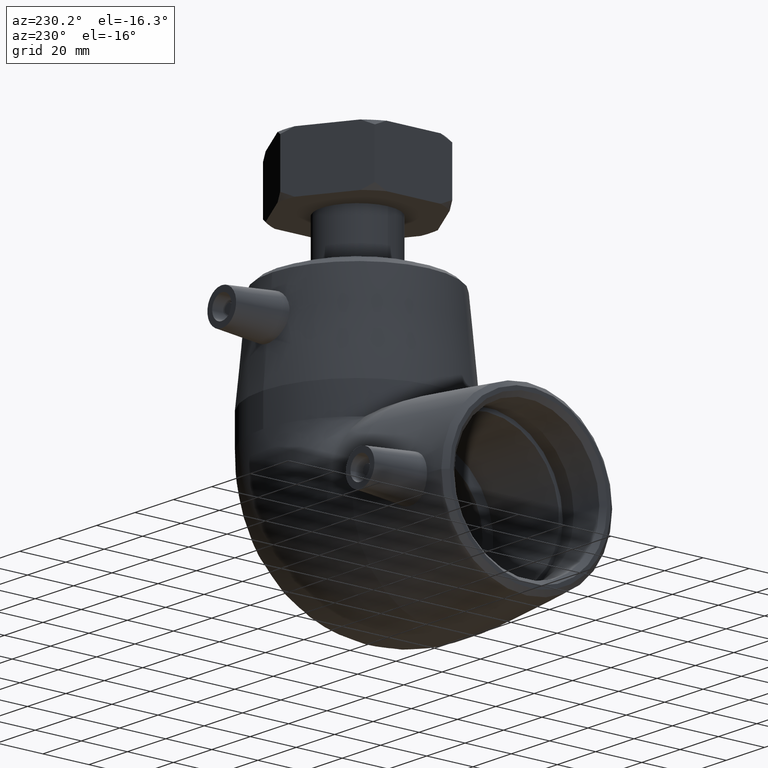
[diagram: clean part render]
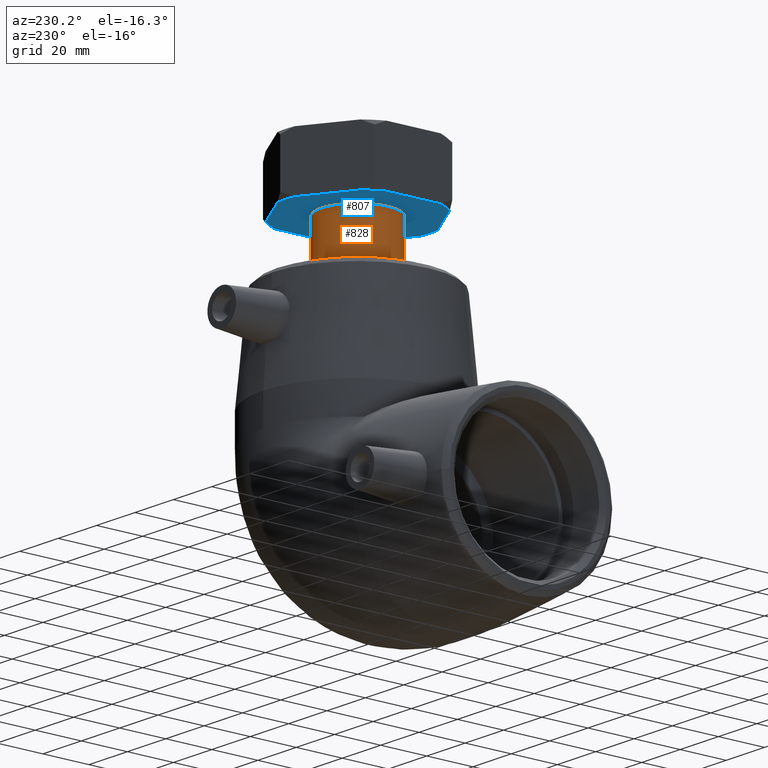
[diagram: same view with the hole feature highlighted: cylindrical wall and planar end face, labeled with their STEP entity ids]
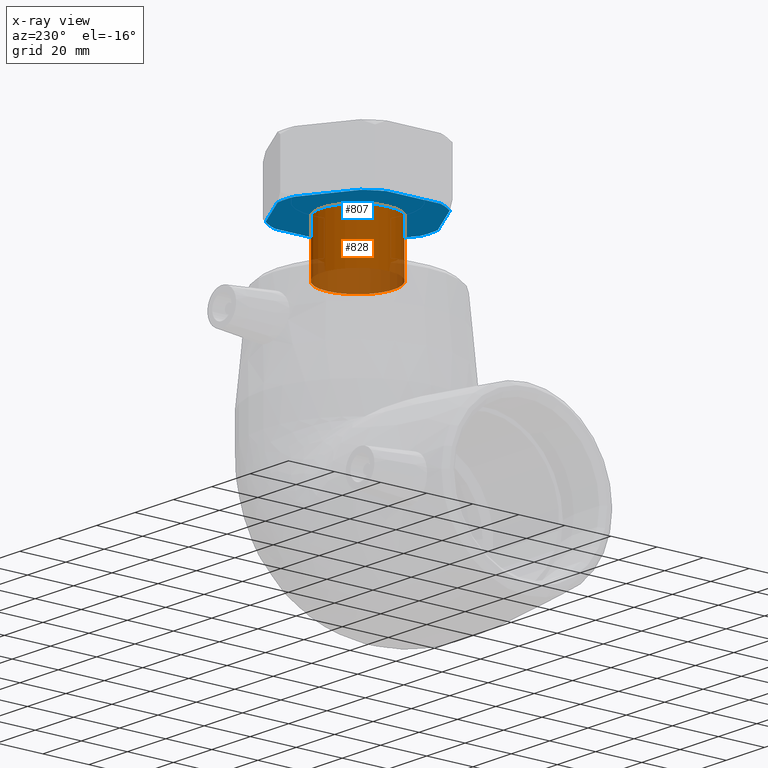
[diagram: x-ray of the same camera — body ghosted, the hole faces saturated]
A machine part, auxiliary view. The highlighted faces form one hole feature of diameter 31.3916 mm: the cylindrical wall (entity #828, orange) and its adjacent planar end face (entity #807, blue) — they share a circular edge in the B-rep.
The next image is the same camera in x-ray (body ghosted, the hole faces saturated) — the bore reads through the body.
Wall:
#87=CYLINDRICAL_SURFACE('',#933,15.69575);
#145=FACE_BOUND('',#295,.T.);
#205=FACE_OUTER_BOUND('',#294,.T.);
#294=EDGE_LOOP('',(#722));
#295=EDGE_LOOP('',(#723));
#348=CIRCLE('',#890,15.69575);
#353=CIRCLE('',#899,15.69575);
#426=VERTEX_POINT('',#1391);
#431=VERTEX_POINT('',#1405);
#524=EDGE_CURVE('',#426,#426,#348,.T.);
#529=EDGE_CURVE('',#431,#431,#353,.T.);
#722=ORIENTED_EDGE('',*,*,#529,.F.);
#723=ORIENTED_EDGE('',*,*,#524,.T.);
#828=ADVANCED_FACE('',(#205,#145),#87,.T.);
#890=AXIS2_PLACEMENT_3D('',#1392,#1064,#1065);
#899=AXIS2_PLACEMENT_3D('',#1406,#1082,#1083);
#933=AXIS2_PLACEMENT_3D('',#1527,#1150,#1151);
#1064=DIRECTION('center_axis',(-2.46716227694479E-16,0.,-1.));
#1065=DIRECTION('ref_axis',(1.,0.,-2.46716227694479E-16));
#1082=DIRECTION('center_axis',(-2.46716227694479E-16,0.,-1.));
#1083=DIRECTION('ref_axis',(1.,0.,-2.46716227694479E-16));
#1150=DIRECTION('center_axis',(-2.46716227694479E-16,0.,-1.));
#1151=DIRECTION('ref_axis',(-1.,0.,3.14483738942102E-16));
#1391=CARTESIAN_POINT('',(-15.69575,0.,114.5));
#1392=CARTESIAN_POINT('Origin',(2.82490080710179E-14,0.,114.5));
#1405=CARTESIAN_POINT('',(-15.69575,0.,91.96));
#1406=CARTESIAN_POINT('Origin',(2.26880242987843E-14,0.,91.96));
#1527=CARTESIAN_POINT('Origin',(2.54685161849011E-14,0.,103.23));
End face:
#21=LINE('',#1253,#39);
#25=LINE('',#1277,#43);
#28=LINE('',#1299,#46);
#30=LINE('',#1316,#48);
#32=LINE('',#1335,#50);
#35=LINE('',#1357,#53);
#39=VECTOR('',#988,23.4097772696047);
#43=VECTOR('',#994,23.4097772696046);
#46=VECTOR('',#999,23.4097772696047);
#48=VECTOR('',#1003,23.4097772696046);
#50=VECTOR('',#1007,23.4097772696047);
#53=VECTOR('',#1012,23.4097772696047);
#102=PLANE('',#889);
#122=FACE_BOUND('',#251,.T.);
#184=FACE_OUTER_BOUND('',#250,.T.);
#250=EDGE_LOOP('',(#656,#657,#658,#659,#660,#661,#662,#663,#664,#665,#666,
#667));
#251=EDGE_LOOP('',(#668));
#342=CIRCLE('',#878,31.3915);
#343=CIRCLE('',#880,31.3915);
#344=CIRCLE('',#882,31.3915);
#345=CIRCLE('',#884,31.3915);
#346=CIRCLE('',#886,31.3915);
#347=CIRCLE('',#888,31.3915);
#348=CIRCLE('',#890,15.69575);
#395=VERTEX_POINT('',#1248);
#396=VERTEX_POINT('',#1252);
#402=VERTEX_POINT('',#1272);
#403=VERTEX_POINT('',#1276);
#408=VERTEX_POINT('',#1294);
#409=VERTEX_POINT('',#1298);
#413=VERTEX_POINT('',#1311);
#414=VERTEX_POINT('',#1315);
#417=VERTEX_POINT('',#1330);
#418=VERTEX_POINT('',#1334);
#423=VERTEX_POINT('',#1352);
#424=VERTEX_POINT('',#1356);
#426=VERTEX_POINT('',#1391);
#475=EDGE_CURVE('',#396,#395,#21,.T.);
#483=EDGE_CURVE('',#403,#402,#25,.T.);
#490=EDGE_CURVE('',#409,#408,#28,.T.);
#495=EDGE_CURVE('',#414,#413,#30,.T.);
#501=EDGE_CURVE('',#418,#417,#32,.T.);
#508=EDGE_CURVE('',#424,#423,#35,.T.);
#518=EDGE_CURVE('',#409,#402,#342,.T.);
#519=EDGE_CURVE('',#414,#408,#343,.T.);
#520=EDGE_CURVE('',#403,#395,#344,.T.);
#521=EDGE_CURVE('',#396,#417,#345,.T.);
#522=EDGE_CURVE('',#424,#413,#346,.T.);
#523=EDGE_CURVE('',#418,#423,#347,.T.);
#524=EDGE_CURVE('',#426,#426,#348,.T.);
#656=ORIENTED_EDGE('',*,*,#508,.T.);
#657=ORIENTED_EDGE('',*,*,#523,.F.);
#658=ORIENTED_EDGE('',*,*,#501,.T.);
#659=ORIENTED_EDGE('',*,*,#521,.F.);
#660=ORIENTED_EDGE('',*,*,#475,.T.);
#661=ORIENTED_EDGE('',*,*,#520,.F.);
#662=ORIENTED_EDGE('',*,*,#483,.T.);
#663=ORIENTED_EDGE('',*,*,#518,.F.);
#664=ORIENTED_EDGE('',*,*,#490,.T.);
#665=ORIENTED_EDGE('',*,*,#519,.F.);
#666=ORIENTED_EDGE('',*,*,#495,.T.);
#667=ORIENTED_EDGE('',*,*,#522,.F.);
#668=ORIENTED_EDGE('',*,*,#524,.F.);
#807=ADVANCED_FACE('',(#184,#122),#102,.T.);
#878=AXIS2_PLACEMENT_3D('',#1379,#1040,#1041);
#880=AXIS2_PLACEMENT_3D('',#1381,#1044,#1045);
#882=AXIS2_PLACEMENT_3D('',#1383,#1048,#1049);
#884=AXIS2_PLACEMENT_3D('',#1385,#1052,#1053);
#886=AXIS2_PLACEMENT_3D('',#1387,#1056,#1057);
#888=AXIS2_PLACEMENT_3D('',#1389,#1060,#1061);
#889=AXIS2_PLACEMENT_3D('',#1390,#1062,#1063);
#890=AXIS2_PLACEMENT_3D('',#1392,#1064,#1065);
#988=DIRECTION('',(-0.866025403784438,-0.500000000000001,2.13662520709285E-16));
#994=DIRECTION('',(-0.866025403784439,0.499999999999999,2.13662520709285E-16));
#999=DIRECTION('',(-1.5844413775451E-15,1.,3.90907399670971E-31));
#1003=DIRECTION('',(0.866025403784438,0.500000000000002,-2.13662520709285E-16));
#1007=DIRECTION('',(1.05629425169673E-15,-1.,-2.60604933113981E-31));
#1012=DIRECTION('',(0.866025403784439,-0.499999999999999,-2.13662520709285E-16));
#1040=DIRECTION('center_axis',(2.46716227694479E-16,0.,1.));
#1041=DIRECTION('ref_axis',(1.,0.,-2.46716227694479E-16));
#1044=DIRECTION('center_axis',(2.46716227694479E-16,0.,1.));
#1045=DIRECTION('ref_axis',(1.,0.,-2.46716227694479E-16));
#1048=DIRECTION('center_axis',(2.46716227694479E-16,0.,1.));
#1049=DIRECTION('ref_axis',(1.,0.,-2.46716227694479E-16));
#1052=DIRECTION('center_axis',(2.46716227694479E-16,0.,1.));
#1053=DIRECTION('ref_axis',(1.,0.,-2.46716227694479E-16));
#1056=DIRECTION('center_axis',(2.46716227694479E-16,0.,1.));
#1057=DIRECTION('ref_axis',(1.,0.,-2.46716227694479E-16));
#1060=DIRECTION('center_axis',(2.46716227694479E-16,0.,1.));
#1061=DIRECTION('ref_axis',(1.,0.,-2.46716227694479E-16));
#1062=DIRECTION('center_axis',(-2.46716227694479E-16,0.,-1.));
#1063=DIRECTION('ref_axis',(-1.,0.,0.));
#1064=DIRECTION('center_axis',(-2.46716227694479E-16,0.,-1.));
#1065=DIRECTION('ref_axis',(1.,0.,-2.46716227694479E-16));
#1248=CARTESIAN_POINT('',(4.42711005606093,-31.0777568174012,114.5));
#1252=CARTESIAN_POINT('',(24.7005718684741,-19.3728681825988,114.5));
#1253=CARTESIAN_POINT('',(15.9598551934012,-24.4193233078624,114.5));
#1272=CARTESIAN_POINT('',(-24.7005718684739,-19.3728681825989,114.5));
#1276=CARTESIAN_POINT('',(-4.42711005606081,-31.0777568174012,114.5));
#1277=CARTESIAN_POINT('',(-13.1678267311337,-26.0313016921376,114.5));
#1294=CARTESIAN_POINT('',(-29.1276819245349,11.7048886348023,114.5));
#1298=CARTESIAN_POINT('',(-29.1276819245348,-11.7048886348024,114.5));
#1299=CARTESIAN_POINT('',(-29.1276819245348,-8.40843750000004,114.5));
#1311=CARTESIAN_POINT('',(-4.42711005606091,31.0777568174012,114.5));
#1315=CARTESIAN_POINT('',(-24.700571868474,19.3728681825988,114.5));
#1316=CARTESIAN_POINT('',(-27.7316676934012,17.6228641921376,114.5));
#1330=CARTESIAN_POINT('',(29.1276819245349,-11.7048886348023,114.5));
#1334=CARTESIAN_POINT('',(29.1276819245349,11.7048886348024,114.5));
#1335=CARTESIAN_POINT('',(29.1276819245349,8.40843750000004,114.5));
#1352=CARTESIAN_POINT('',(24.700571868474,19.3728681825989,114.5));
#1356=CARTESIAN_POINT('',(4.42711005606083,31.0777568174012,114.5));
#1357=CARTESIAN_POINT('',(1.39601423113369,32.8277608078624,114.5));
#1379=CARTESIAN_POINT('Origin',(2.82490080710179E-14,0.,114.5));
#1381=CARTESIAN_POINT('Origin',(2.82490080710179E-14,0.,114.5));
#1383=CARTESIAN_POINT('Origin',(2.82490080710179E-14,0.,114.5));
#1385=CARTESIAN_POINT('Origin',(2.82490080710179E-14,0.,114.5));
#1387=CARTESIAN_POINT('Origin',(2.82490080710179E-14,0.,114.5));
#1389=CARTESIAN_POINT('Origin',(2.82490080710179E-14,0.,114.5));
#1390=CARTESIAN_POINT('Origin',(-15.69575,0.,114.5));
#1391=CARTESIAN_POINT('',(-15.69575,0.,114.5));
#1392=CARTESIAN_POINT('Origin',(2.82490080710179E-14,0.,114.5));